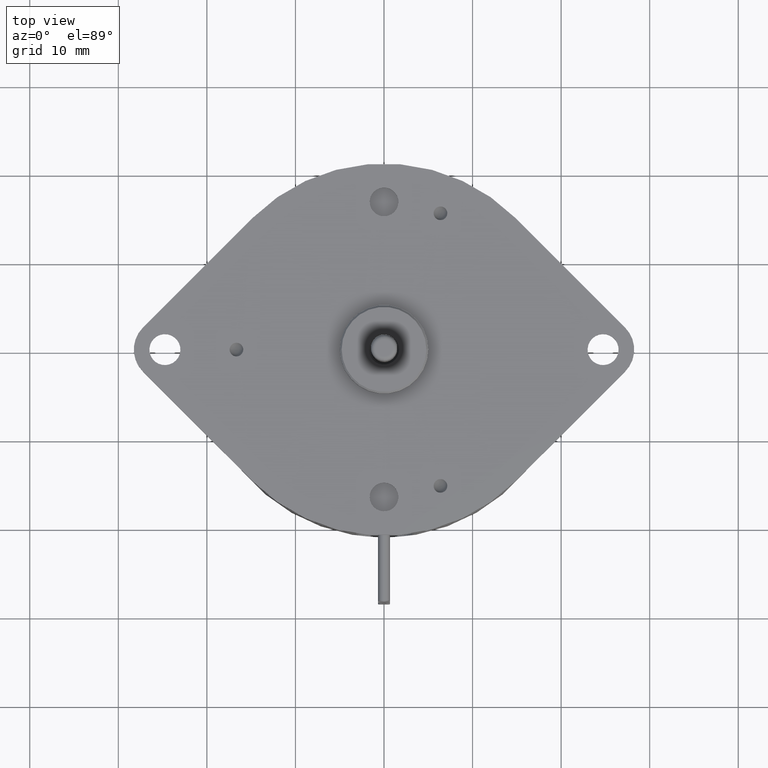
[diagram: clean part render]
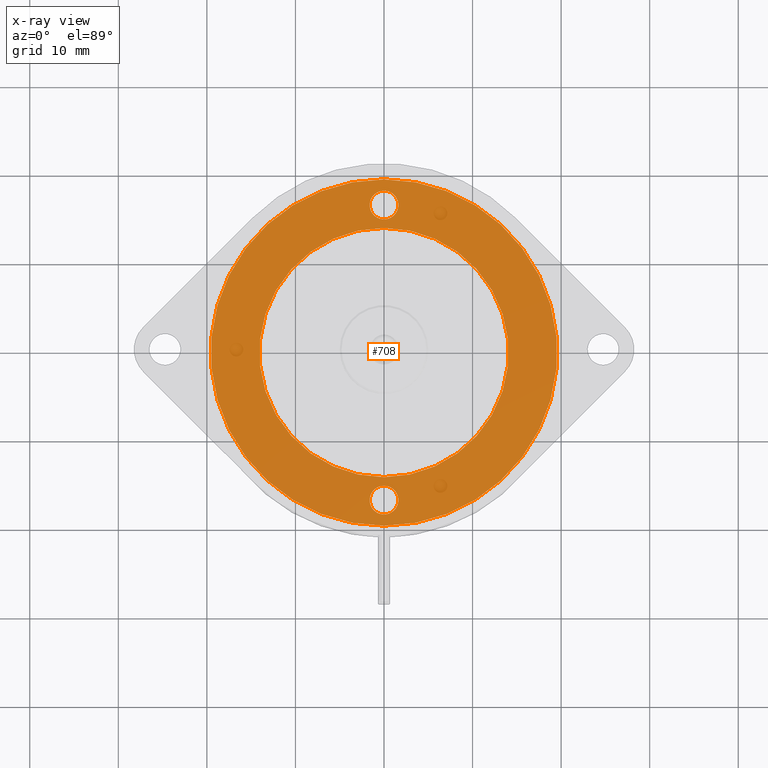
[diagram: x-ray — body ghosted, one internal face saturated and labeled with its STEP entity id]
A machine part, top view, then the same camera in x-ray: the body is ghosted and one INTERNAL B-rep face — a face not visible from any outside direction — is saturated and labeled: STEP entity #708.
In plain terms, the highlighted planar face has unit normal (0, 0, 1).
Its self-contained STEP definition (entity closure, byte-faithful):
#232=CARTESIAN_POINT('',(3.2E-2,0.E0,0.E0));
#233=DIRECTION('',(-1.E0,0.E0,0.E0));
#234=DIRECTION('',(0.E0,1.E0,0.E0));
#235=AXIS2_PLACEMENT_3D('',#232,#233,#234);
#237=CARTESIAN_POINT('',(3.2E-2,0.E0,0.E0));
#238=DIRECTION('',(-1.E0,0.E0,0.E0));
#239=DIRECTION('',(0.E0,-1.E0,0.E0));
#240=AXIS2_PLACEMENT_3D('',#237,#238,#239);
#242=CARTESIAN_POINT('',(3.2E-2,-6.56E-1,0.E0));
#243=DIRECTION('',(1.E0,0.E0,0.E0));
#244=DIRECTION('',(0.E0,1.E0,0.E0));
#245=AXIS2_PLACEMENT_3D('',#242,#243,#244);
#247=CARTESIAN_POINT('',(3.2E-2,-6.56E-1,0.E0));
#248=DIRECTION('',(1.E0,0.E0,0.E0));
#249=DIRECTION('',(0.E0,-1.E0,0.E0));
#250=AXIS2_PLACEMENT_3D('',#247,#248,#249);
#252=CARTESIAN_POINT('',(3.2E-2,6.56E-1,0.E0));
#253=DIRECTION('',(1.E0,0.E0,0.E0));
#254=DIRECTION('',(0.E0,1.E0,0.E0));
#255=AXIS2_PLACEMENT_3D('',#252,#253,#254);
#257=CARTESIAN_POINT('',(3.2E-2,6.56E-1,0.E0));
#258=DIRECTION('',(1.E0,0.E0,0.E0));
#259=DIRECTION('',(0.E0,-1.E0,0.E0));
#260=AXIS2_PLACEMENT_3D('',#257,#258,#259);
#262=CARTESIAN_POINT('',(3.2E-2,0.E0,0.E0));
#263=DIRECTION('',(1.E0,0.E0,0.E0));
#264=DIRECTION('',(0.E0,-1.E0,0.E0));
#265=AXIS2_PLACEMENT_3D('',#262,#263,#264);
#267=CARTESIAN_POINT('',(3.2E-2,0.E0,0.E0));
#268=DIRECTION('',(1.E0,0.E0,0.E0));
#269=DIRECTION('',(0.E0,1.E0,0.E0));
#270=AXIS2_PLACEMENT_3D('',#267,#268,#269);
#404=CARTESIAN_POINT('',(3.2E-2,-7.699E-1,0.E0));
#405=CARTESIAN_POINT('',(3.2E-2,7.699E-1,0.E0));
#406=VERTEX_POINT('',#404);
#407=VERTEX_POINT('',#405);
#408=CARTESIAN_POINT('',(3.2E-2,-5.92E-1,0.E0));
#409=CARTESIAN_POINT('',(3.2E-2,-7.2E-1,0.E0));
#410=VERTEX_POINT('',#408);
#411=VERTEX_POINT('',#409);
#412=CARTESIAN_POINT('',(3.2E-2,7.2E-1,0.E0));
#413=CARTESIAN_POINT('',(3.2E-2,5.92E-1,0.E0));
#414=VERTEX_POINT('',#412);
#415=VERTEX_POINT('',#413);
#416=CARTESIAN_POINT('',(3.2E-2,-5.543107635054E-1,0.E0));
#417=CARTESIAN_POINT('',(3.2E-2,5.543107635054E-1,0.E0));
#418=VERTEX_POINT('',#416);
#419=VERTEX_POINT('',#417);
#680=CARTESIAN_POINT('',(3.2E-2,0.E0,0.E0));
#681=DIRECTION('',(1.E0,0.E0,0.E0));
#682=DIRECTION('',(0.E0,0.E0,1.E0));
#683=AXIS2_PLACEMENT_3D('',#680,#681,#682);
#684=PLANE('',#683);
#686=ORIENTED_EDGE('',*,*,#685,.T.);
#688=ORIENTED_EDGE('',*,*,#687,.T.);
#689=EDGE_LOOP('',(#686,#688));
#690=FACE_OUTER_BOUND('',#689,.F.);
#692=ORIENTED_EDGE('',*,*,#691,.T.);
#694=ORIENTED_EDGE('',*,*,#693,.T.);
#695=EDGE_LOOP('',(#692,#694));
#696=FACE_BOUND('',#695,.F.);
#697=ORIENTED_EDGE('',*,*,#670,.T.);
#699=ORIENTED_EDGE('',*,*,#698,.T.);
#700=EDGE_LOOP('',(#697,#699));
#701=FACE_BOUND('',#700,.F.);
#703=ORIENTED_EDGE('',*,*,#702,.T.);
#705=ORIENTED_EDGE('',*,*,#704,.T.);
#706=EDGE_LOOP('',(#703,#705));
#707=FACE_BOUND('',#706,.F.);
#708=ADVANCED_FACE('',(#690,#696,#701,#707),#684,.T.);
#236=CIRCLE('',#235,7.699E-1);
#241=CIRCLE('',#240,7.699E-1);
#246=CIRCLE('',#245,6.4E-2);
#251=CIRCLE('',#250,6.4E-2);
#256=CIRCLE('',#255,6.4E-2);
#261=CIRCLE('',#260,6.4E-2);
#266=CIRCLE('',#265,5.543107635054E-1);
#271=CIRCLE('',#270,5.543107635054E-1);
#670=EDGE_CURVE('',#414,#415,#256,.T.);
#685=EDGE_CURVE('',#407,#406,#236,.T.);
#687=EDGE_CURVE('',#406,#407,#241,.T.);
#691=EDGE_CURVE('',#410,#411,#246,.T.);
#693=EDGE_CURVE('',#411,#410,#251,.T.);
#698=EDGE_CURVE('',#415,#414,#261,.T.);
#702=EDGE_CURVE('',#418,#419,#266,.T.);
#704=EDGE_CURVE('',#419,#418,#271,.T.);